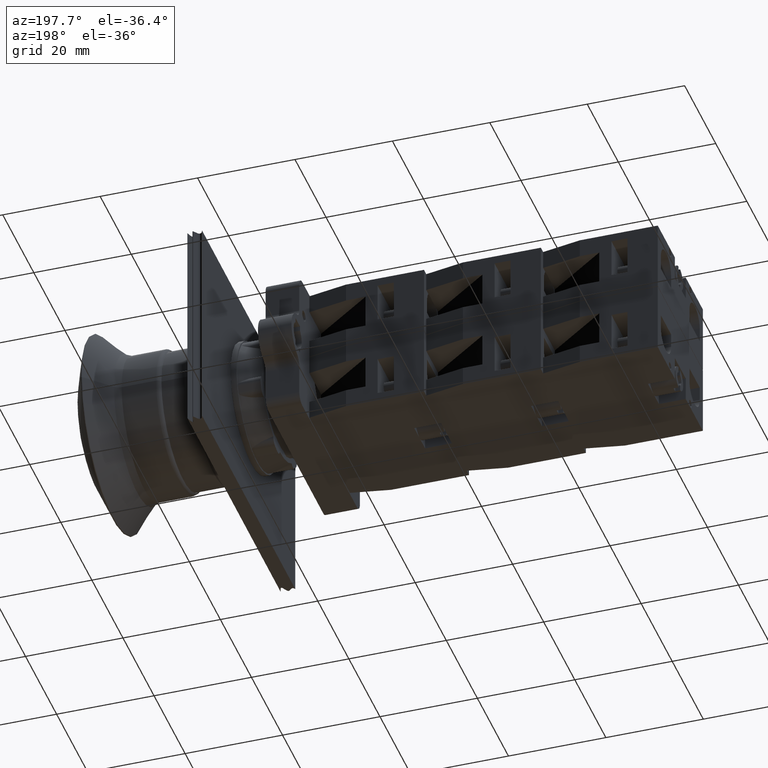
[diagram: clean part render]
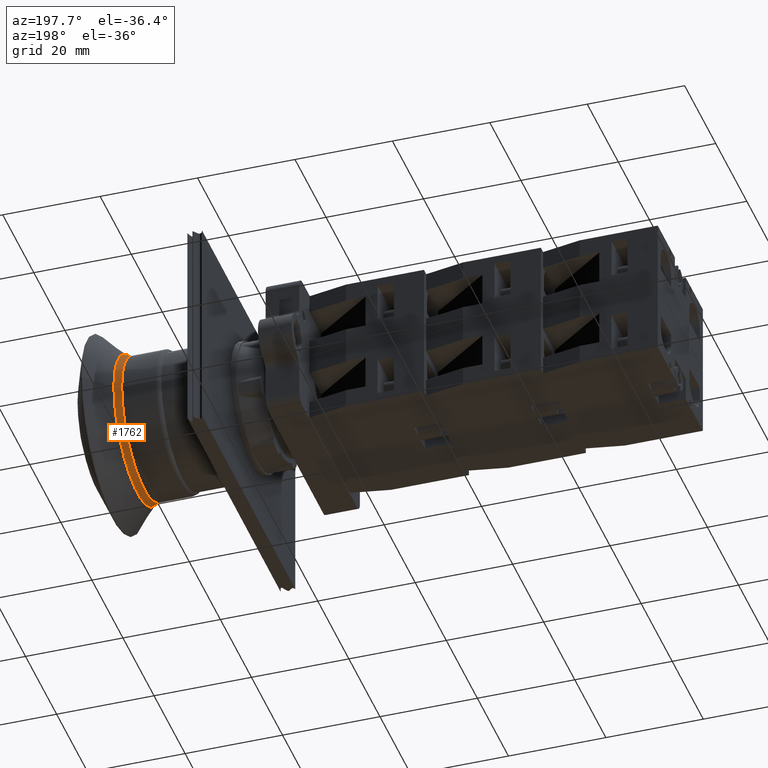
[diagram: same view with one face highlighted and labeled with its STEP entity id]
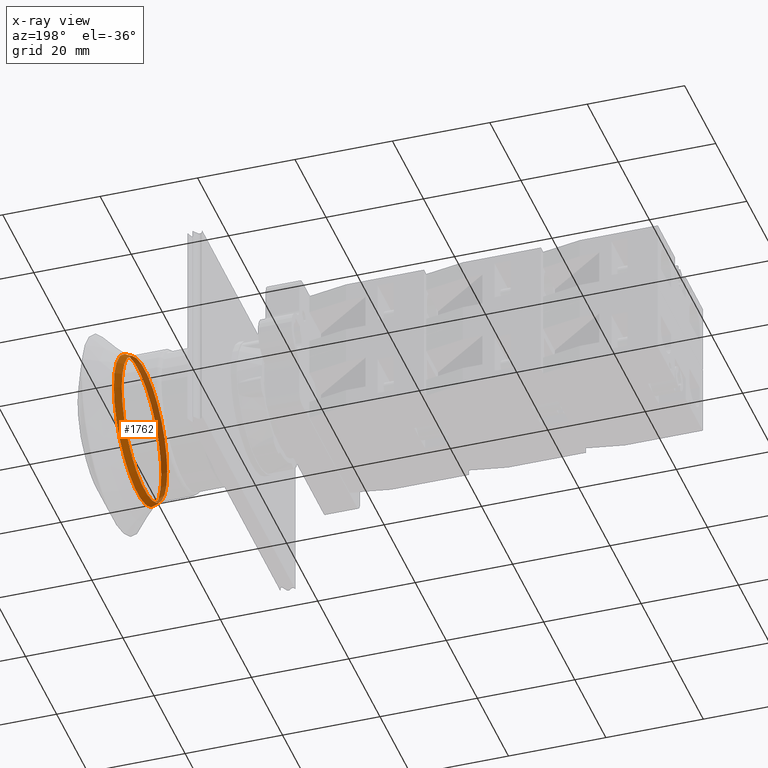
[diagram: x-ray of the same camera — body ghosted, the highlighted face saturated]
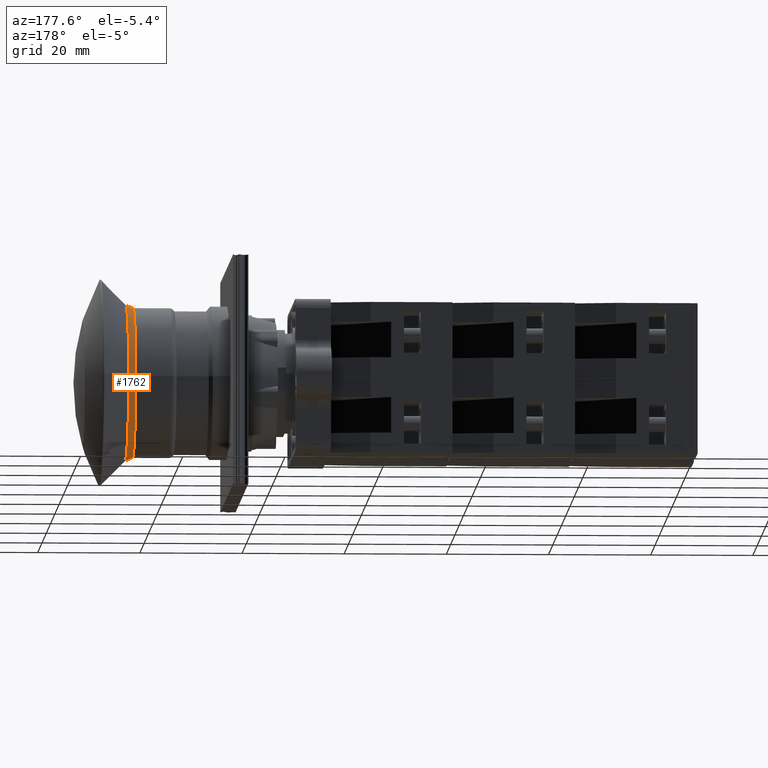
[diagram: same view with one face highlighted and labeled with its STEP entity id]
A machine part, auxiliary view. The second image highlights one B-rep face of the part: STEP entity #1762.
The next image is the same camera in x-ray: the body ghosted, the highlighted face saturated — about 38% of this face is hidden behind the body in this view.
A second angle (auxiliary view) of the same face is appended — the face is thin or edge-on in the first view.
In plain terms, the highlighted face is a freeform B-spline surface patch.
Its self-contained STEP definition (entity closure, byte-faithful):
#1680=CARTESIAN_POINT('',(9.079731840454762,15.779839215727595,0.0));
#1681=VERTEX_POINT('',#1680);
#1682=CARTESIAN_POINT('',(9.079731840454762,1.129839215727505,0.0));
#1683=DIRECTION('',(1.0,0.0,0.0));
#1684=DIRECTION('',(0.0,1.0,0.0));
#1685=AXIS2_PLACEMENT_3D('',#1682,#1683,#1684);
#1686=CIRCLE('',#1685,14.650000000000091);
#1687=EDGE_CURVE('',#1681,#1681,#1686,.T.);
#1695=CARTESIAN_POINT('',(9.079731840454762,1.129839215727502,18.650000000000091));
#1696=CARTESIAN_POINT('',(11.079731840454762,1.129839215727502,18.650000000000091));
#1697=CARTESIAN_POINT('',(11.079731840454762,1.129839215727502,16.650000000000091));
#1698=CARTESIAN_POINT('',(11.079731840454762,1.129839215727502,14.650000000000089));
#1699=CARTESIAN_POINT('',(9.079731840454762,1.129839215727502,14.650000000000091));
#1700=CARTESIAN_POINT('',(9.079731840454762,-17.520160784272587,18.650000000000084));
#1701=CARTESIAN_POINT('',(11.079731840454762,-17.520160784272587,18.650000000000084));
#1702=CARTESIAN_POINT('',(11.079731840454762,-15.520160784272585,16.650000000000084));
#1703=CARTESIAN_POINT('',(11.079731840454762,-13.520160784272585,14.650000000000086));
#1704=CARTESIAN_POINT('',(9.079731840454762,-13.520160784272585,14.650000000000086));
#1705=CARTESIAN_POINT('',(9.079731840454762,-17.520160784272587,-2.220446E-015));
#1706=CARTESIAN_POINT('',(11.079731840454762,-17.520160784272587,-2.220446E-015));
#1707=CARTESIAN_POINT('',(11.079731840454762,-15.520160784272587,-1.998401E-015));
#1708=CARTESIAN_POINT('',(11.079731840454762,-13.520160784272587,-1.776357E-015));
#1709=CARTESIAN_POINT('',(9.079731840454762,-13.520160784272587,-1.776357E-015));
#1710=CARTESIAN_POINT('',(9.079731840454762,-17.520160784272580,-18.650000000000091));
#1711=CARTESIAN_POINT('',(11.079731840454762,-17.520160784272580,-18.650000000000091));
#1712=CARTESIAN_POINT('',(11.079731840454762,-15.520160784272580,-16.650000000000091));
#1713=CARTESIAN_POINT('',(11.079731840454762,-13.520160784272582,-14.650000000000089));
#1714=CARTESIAN_POINT('',(9.079731840454762,-13.520160784272582,-14.650000000000087));
#1715=CARTESIAN_POINT('',(9.079731840454762,1.129839215727506,-18.650000000000091));
#1716=CARTESIAN_POINT('',(11.079731840454762,1.129839215727506,-18.650000000000091));
#1717=CARTESIAN_POINT('',(11.079731840454762,1.129839215727506,-16.650000000000091));
#1718=CARTESIAN_POINT('',(11.079731840454762,1.129839215727506,-14.650000000000089));
#1719=CARTESIAN_POINT('',(9.079731840454762,1.129839215727506,-14.650000000000091));
#1720=CARTESIAN_POINT('',(9.079731840454762,19.779839215727595,-18.650000000000084));
#1721=CARTESIAN_POINT('',(11.079731840454762,19.779839215727595,-18.650000000000084));
#1722=CARTESIAN_POINT('',(11.079731840454762,17.779839215727595,-16.650000000000084));
#1723=CARTESIAN_POINT('',(11.079731840454762,15.779839215727593,-14.650000000000086));
#1724=CARTESIAN_POINT('',(9.079731840454762,15.779839215727595,-14.650000000000086));
#1725=CARTESIAN_POINT('',(9.079731840454762,19.779839215727595,2.220446E-015));
#1726=CARTESIAN_POINT('',(11.079731840454762,19.779839215727595,2.220446E-015));
#1727=CARTESIAN_POINT('',(11.079731840454762,17.779839215727595,1.998401E-015));
#1728=CARTESIAN_POINT('',(11.079731840454762,15.779839215727595,1.776357E-015));
#1729=CARTESIAN_POINT('',(9.079731840454762,15.779839215727595,1.776357E-015));
#1730=CARTESIAN_POINT('',(9.079731840454762,19.779839215727588,18.650000000000091));
#1731=CARTESIAN_POINT('',(11.079731840454762,19.779839215727588,18.650000000000091));
#1732=CARTESIAN_POINT('',(11.079731840454762,17.779839215727588,16.650000000000091));
#1733=CARTESIAN_POINT('',(11.079731840454762,15.779839215727590,14.650000000000089));
#1734=CARTESIAN_POINT('',(9.079731840454762,15.779839215727590,14.650000000000087));
#1735=CARTESIAN_POINT('',(9.079731840454762,1.129839215727502,18.650000000000091));
#1736=CARTESIAN_POINT('',(11.079731840454762,1.129839215727502,18.650000000000091));
#1737=CARTESIAN_POINT('',(11.079731840454762,1.129839215727502,16.650000000000091));
#1738=CARTESIAN_POINT('',(11.079731840454762,1.129839215727502,14.650000000000089));
#1739=CARTESIAN_POINT('',(9.079731840454762,1.129839215727502,14.650000000000091));
#1747=(BOUNDED_SURFACE()B_SPLINE_SURFACE(2,2,((#1695,#1700,#1705,#1710,#1715,#1720,#1725,#1730,#1735),(#1696,#1701,#1706,#1711,#1716,#1721,#1726,#1731,#1736),(#1697,#1702,#1707,#1712,#1717,#1722,#1727,#1732,#1737),(#1698,#1703,#1708,#1713,#1718,#1723,#1728,#1733,#1738),(#1699,#1704,#1709,#1714,#1719,#1724,#1729,#1734,#1739)),.UNSPECIFIED.,.F.,.T.,.U.)B_SPLINE_SURFACE_WITH_KNOTS((3,2,3),(3,2,2,2,3),(0.0,1.570796326794897,3.141592653589793),(0.0,1.570796326794897,3.141592653589793,4.712388980384690,6.283185307179586),.UNSPECIFIED.)GEOMETRIC_REPRESENTATION_ITEM()RATIONAL_B_SPLINE_SURFACE(((1.0,0.707106781186548,1.0,0.707106781186548,1.0,0.707106781186548,1.0,0.707106781186548,1.0),(0.707106781186550,0.500000000000002,0.707106781186550,0.500000000000002,0.707106781186550,0.500000000000002,0.707106781186550,0.500000000000002,0.707106781186550),(1.0,0.707106781186548,1.0,0.707106781186548,1.0,0.707106781186548,1.0,0.707106781186548,1.0),(0.707106781186550,0.500000000000002,0.707106781186550,0.500000000000002,0.707106781186550,0.500000000000002,0.707106781186550,0.500000000000002,0.707106781186550),(1.0,0.707106781186548,1.0,0.707106781186548,1.0,0.707106781186548,1.0,0.707106781186548,1.0)))REPRESENTATION_ITEM('')SURFACE());
#1748=CARTESIAN_POINT('',(10.493945402827860,16.365625653354499,0.0));
#1749=VERTEX_POINT('',#1748);
#1750=CARTESIAN_POINT('',(10.493945402827860,1.129839215727505,0.0));
#1751=DIRECTION('',(1.0,0.0,0.0));
#1752=DIRECTION('',(0.0,1.0,0.0));
#1753=AXIS2_PLACEMENT_3D('',#1750,#1751,#1752);
#1754=CIRCLE('',#1753,15.235786437626995);
#1755=EDGE_CURVE('',#1749,#1749,#1754,.T.);
#1756=ORIENTED_EDGE('',*,*,#1755,.F.);
#1757=EDGE_LOOP('',(#1756));
#1758=FACE_OUTER_BOUND('',#1757,.T.);
#1759=ORIENTED_EDGE('',*,*,#1687,.T.);
#1760=EDGE_LOOP('',(#1759));
#1761=FACE_BOUND('',#1760,.T.);
#1762=ADVANCED_FACE('',(#1758,#1761),#1747,.T.);